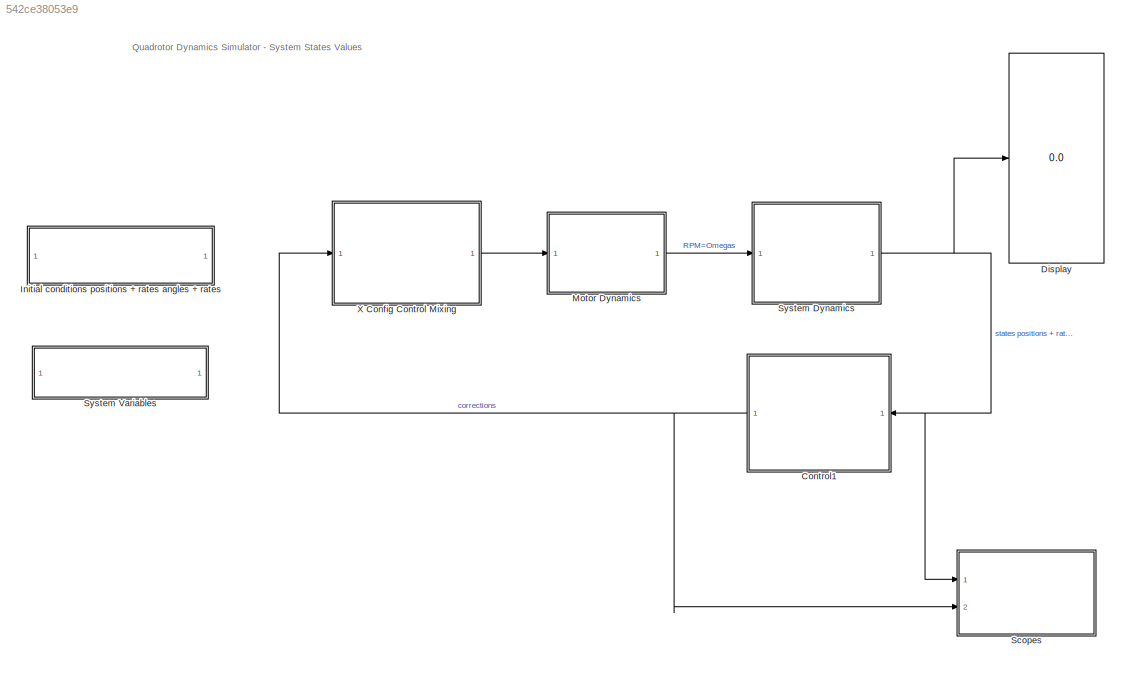
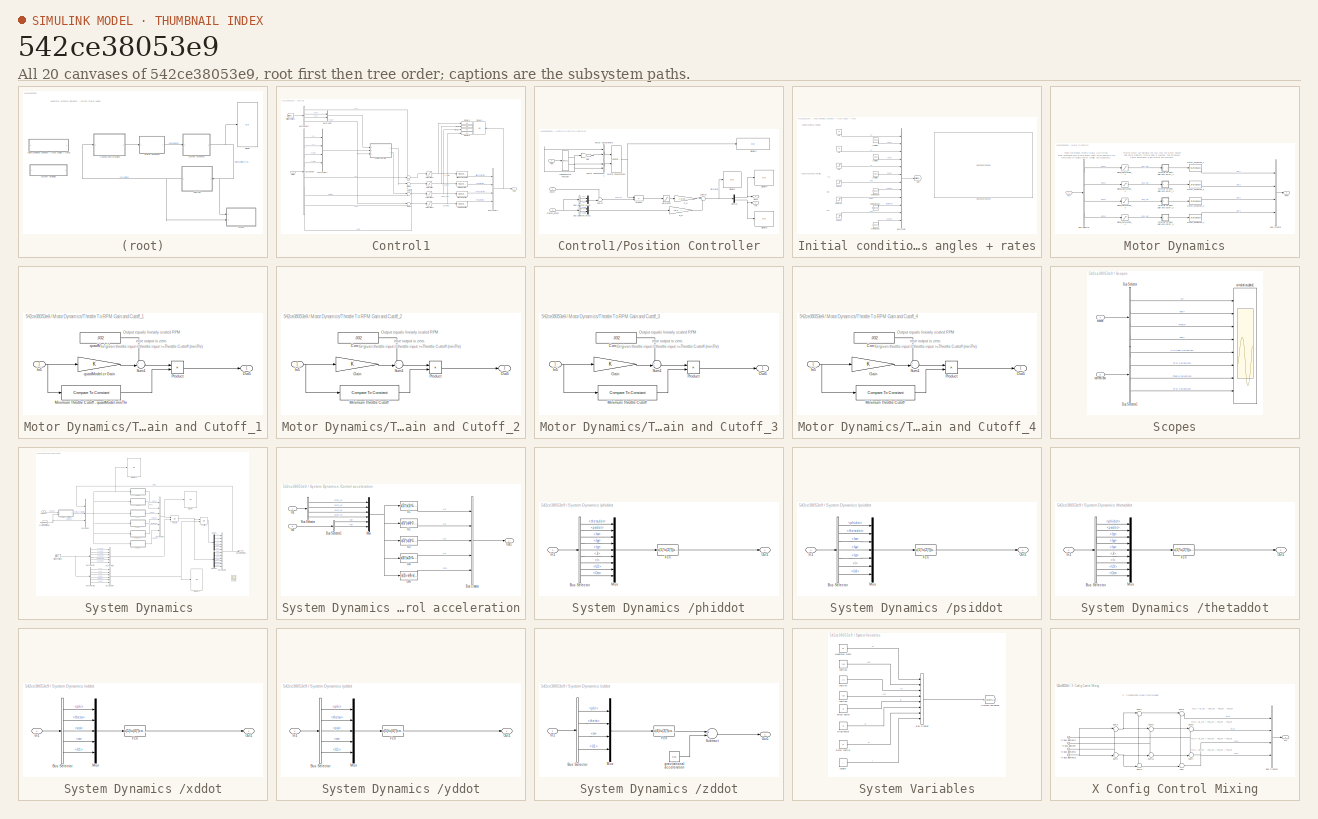
[diagram: thumbnail index - all 20 canvases of the model, root first then tree order]
MODEL slx_542ce38053e9
KIND model
CONFIG AbsTol = auto
CONFIG EnableMultiTasking = on
CONFIG FixedStep = 1
CONFIG MaxStep = auto
CONFIG MinStep = auto
CONFIG RelTol = 1e-3
CONFIG SampleTimeConstraint = Unconstrained
CONFIG Solver = ode45
CONFIG SolverName = ode45
CONFIG StartTime = 0.0
CONFIG StopTime = 60
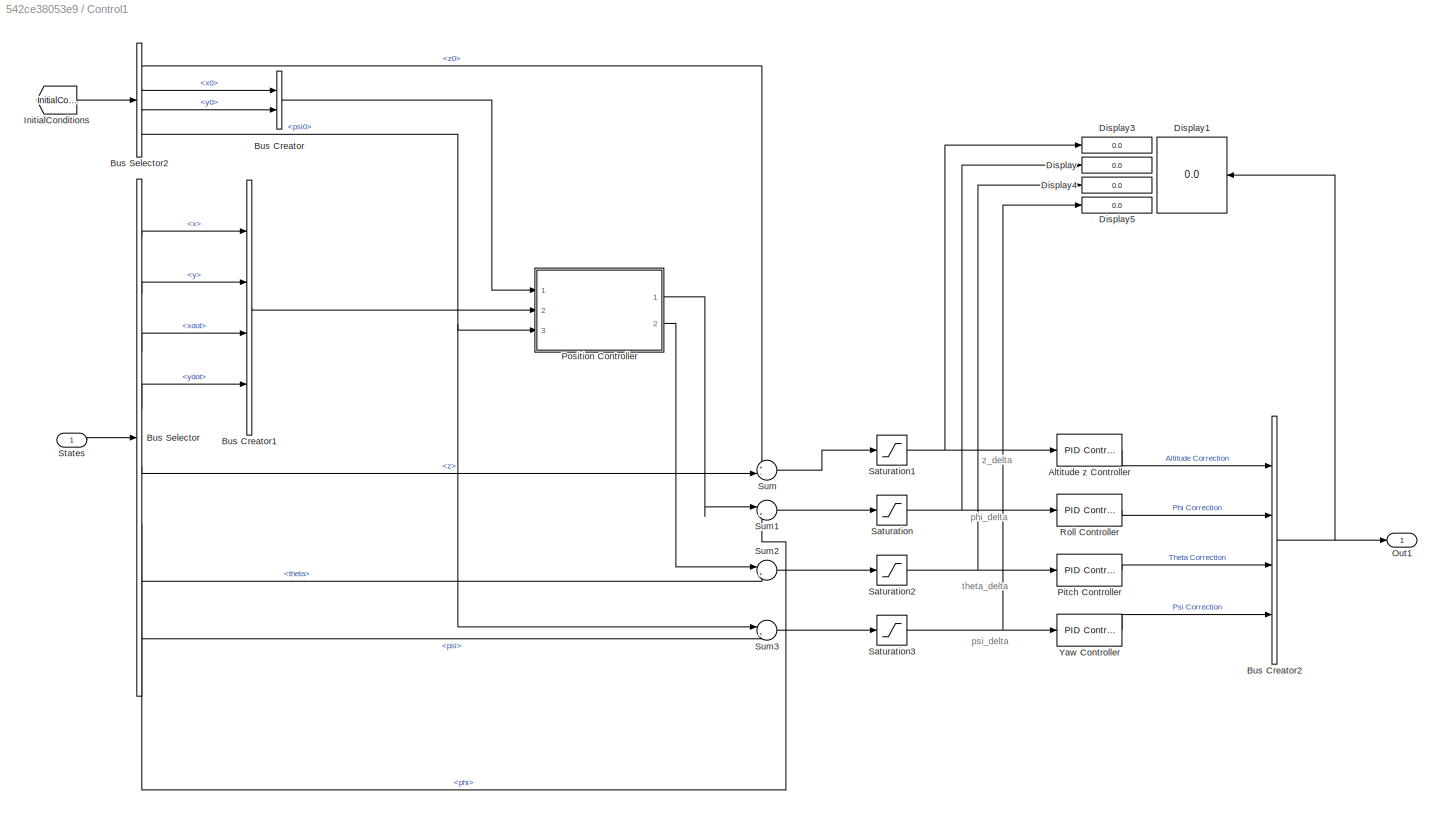
BLOCK [SubSystem] Control1
  Ports = [1, 1]
  RequestExecContextInheritance = off
BLOCK [Reference] Control1/Altitude z Controller  REF=simulink/Continuous/PID Controller
  Ports = [1, 1]
  SourceBlock = simulink/Continuous/PID Controller
  SourceProductBaseCode = SL
  SourceProductName = Simulink
  SourceType = PID 1dof
BLOCK [BusCreator] Control1/Bus Creator
  DisplayOption = bar
  InheritFromInputs = on
  Inputs = 2
  Ports = [2, 1]
BLOCK [BusCreator] Control1/Bus Creator1
  DisplayOption = bar
  InheritFromInputs = on
  Inputs = 4
  Ports = [4, 1]
BLOCK [BusCreator] Control1/Bus Creator2
  DisplayOption = bar
  InheritFromInputs = on
  Inputs = 4
  Ports = [4, 1]
BLOCK [BusSelector] Control1/Bus Selector
  OutputAsBus = off
  OutputSignals = x,y,xdot,ydot,z,phi,theta,psi
  Ports = [1, 8]
BLOCK [BusSelector] Control1/Bus Selector2
  OutputAsBus = off
  OutputSignals = z0,x0,y0,psi0
  Ports = [1, 4]
BLOCK [Display] Control1/Display
  Decimation = 1
  Ports = [1]
BLOCK [Display] Control1/Display1
  Decimation = 1
  Ports = [1]
BLOCK [Display] Control1/Display3
  Decimation = 1
  Ports = [1]
BLOCK [Display] Control1/Display4
  Decimation = 1
  Ports = [1]
BLOCK [Display] Control1/Display5
  Decimation = 1
  Ports = [1]
BLOCK [From] Control1/InitialConditions
  GotoTag = InitialConditions
  TagVisibility = global
BLOCK [Outport] Control1/Out1
  IconDisplay = Port number
BLOCK [Reference] Control1/Pitch Controller  REF=simulink/Continuous/PID Controller
  Ports = [1, 1]
  SourceBlock = simulink/Continuous/PID Controller
  SourceProductBaseCode = SL
  SourceProductName = Simulink
  SourceType = PID 1dof
BLOCK [SubSystem] Control1/Position Controller
  Ports = [3, 2]
  RequestExecContextInheritance = off
BLOCK [BusSelector] Control1/Position Controller/Bus Selector1
  OutputAsBus = off
  OutputSignals = x,y
  Ports = [1, 2]
BLOCK [BusSelector] Control1/Position Controller/Bus Selector2
  OutputAsBus = off
  OutputSignals = xdot,ydot
  Ports = [1, 2]
BLOCK [Gain] Control1/Position Controller/D_xy
  Gain = [0.1, -0.1]
  OutDataTypeStr = single
  ParamDataTypeStr = single
BLOCK [Demux] Control1/Position Controller/Demux
  DisplayOption = bar
  Outputs = 2
  Ports = [1, 2]
BLOCK [Display] Control1/Position Controller/Display1
  Decimation = 1
  Ports = [1]
BLOCK [Display] Control1/Position Controller/Display2
  Decimation = 1
  Ports = [1]
BLOCK [Display] Control1/Position Controller/Display3
  Decimation = 1
  Ports = [1]
BLOCK [Display] Control1/Position Controller/Display4
  Decimation = 1
  Ports = [1]
BLOCK [Gain] Control1/Position Controller/Gain
  Gain = -1
  OutDataTypeStr = Inherit: Inherit via internal rule
  ParamDataTypeStr = Inherit: Inherit via internal rule
  SaturateOnIntegerOverflow = off
BLOCK [Concatenate] Control1/Position Controller/Matrix Concatenate
  ConcatenateDimension = 2
  Mode = Multidimensional array
  Ports = [2, 1]
BLOCK [Mux] Control1/Position Controller/Mux
  DisplayOption = bar
  Inputs = 2
  Ports = [2, 1]
BLOCK [Mux] Control1/Position Controller/Mux1
  DisplayOption = bar
  Inputs = 2
  Ports = [2, 1]
BLOCK [Gain] Control1/Position Controller/P_xy
  Gain = [-0.24,0.24]
  OutDataTypeStr = single
  ParamDataTypeStr = single
BLOCK [Product] Control1/Position Controller/Product
  InputSameDT = off
  Multiplication = Matrix(*)
  OutDataTypeStr = single
  Ports = [2, 1]
  SaturateOnIntegerOverflow = off
BLOCK [Saturate] Control1/Position Controller/Saturation
  InputPortMap = u0
  LowerLimit = -3
  OutDataTypeStr = single
  Ports = [1, 1]
  UpperLimit = 3
BLOCK [Sum] Control1/Position Controller/Sum17
  AccumDataTypeStr = single
  IconShape = round
  InputSameDT = off
  Inputs = +-|
  OutDataTypeStr = Inherit: Inherit via internal rule
  Ports = [2, 1]
  SaturateOnIntegerOverflow = off
BLOCK [Sum] Control1/Position Controller/Sum18
  AccumDataTypeStr = single
  IconShape = round
  InputSameDT = off
  Inputs = |++
  OutDataTypeStr = single
  Ports = [2, 1]
BLOCK [Trigonometry] Control1/Position Controller/Trigonometric Function
  Operator = sincos
  Ports = [1, 2]
BLOCK [Concatenate] Control1/Position Controller/Vector Concatenate
  Ports = [2, 1]
BLOCK [Concatenate] Control1/Position Controller/Vector Concatenate1
  Ports = [2, 1]
BLOCK [Outport] Control1/Position Controller/pitch
  IconDisplay = Port number
  Port = 2
BLOCK [Inport] Control1/Position Controller/posXY
  IconDisplay = Port number
BLOCK [Outport] Control1/Position Controller/roll
  IconDisplay = Port number
BLOCK [Inport] Control1/Position Controller/states_estim
  IconDisplay = Port number
  Port = 2
BLOCK [Inport] Control1/Position Controller/yaw
  IconDisplay = Port number
  Port = 3
BLOCK [Reference] Control1/Roll Controller  REF=simulink/Continuous/PID Controller
  Ports = [1, 1]
  SourceBlock = simulink/Continuous/PID Controller
  SourceProductBaseCode = SL
  SourceProductName = Simulink
  SourceType = PID 1dof
BLOCK [Saturate] Control1/Saturation
  InputPortMap = u0
  Ports = [1, 1]
BLOCK [Saturate] Control1/Saturation1
  InputPortMap = u0
  LowerLimit = -0.8
  Ports = [1, 1]
  UpperLimit = .8
BLOCK [Saturate] Control1/Saturation2
  InputPortMap = u0
  Ports = [1, 1]
BLOCK [Saturate] Control1/Saturation3
  InputPortMap = u0
  Ports = [1, 1]
BLOCK [Inport] Control1/States
  IconDisplay = Port number
BLOCK [Sum] Control1/Sum
  IconShape = round
  InputSameDT = off
  Inputs = +-|
  OutDataTypeStr = Inherit: Inherit via internal rule
  Ports = [2, 1]
  SaturateOnIntegerOverflow = off
BLOCK [Sum] Control1/Sum1
  IconShape = round
  InputSameDT = off
  Inputs = |+-
  OutDataTypeStr = Inherit: Inherit via internal rule
  Ports = [2, 1]
  SaturateOnIntegerOverflow = off
BLOCK [Sum] Control1/Sum2
  IconShape = round
  InputSameDT = off
  Inputs = |+-
  OutDataTypeStr = Inherit: Inherit via internal rule
  Ports = [2, 1]
  SaturateOnIntegerOverflow = off
BLOCK [Sum] Control1/Sum3
  IconShape = round
  InputSameDT = off
  Inputs = |+-
  OutDataTypeStr = Inherit: Inherit via internal rule
  Ports = [2, 1]
  SaturateOnIntegerOverflow = off
BLOCK [Reference] Control1/Yaw Controller  REF=simulink/Continuous/PID Controller
  Ports = [1, 1]
  SourceBlock = simulink/Continuous/PID Controller
  SourceProductBaseCode = SL
  SourceProductName = Simulink
  SourceType = PID 1dof
BLOCK [Display] Display
  Decimation = 1
  Ports = [1]
BLOCK [SubSystem] Initial conditions positions + rates angles + rates
  Ports = []
  RequestExecContextInheritance = off
BLOCK [BusCreator] Initial conditions positions + rates angles + rates/Bus Creator
  DisplayOption = bar
  InheritFromInputs = on
  Inputs = 12
  Ports = [12, 1]
BLOCK [DashboardScope] Initial conditions positions + rates angles + rates/Dashboard Scope
  WebBlockId = 1369
BLOCK [Goto] Initial conditions positions + rates angles + rates/Goto
  GotoTag = InitialConditions
  TagVisibility = global
BLOCK [Step] Initial conditions positions + rates angles + rates/phi [rad]
  After = -10*pi/180
  SampleTime = 0
  Time = 4
BLOCK [Constant] Initial conditions positions + rates angles + rates/phidot [rad//s]
  Value = phi0dot
BLOCK [Step] Initial conditions positions + rates angles + rates/psi [rad]
  After = 45*pi/180
  SampleTime = 0
  Time = 7
BLOCK [Constant] Initial conditions positions + rates angles + rates/psidot [rad//s]
  Value = psi0dot
BLOCK [Step] Initial conditions positions + rates angles + rates/theta [rad]
  After = 10*pi/180
  SampleTime = 0
BLOCK [Constant] Initial conditions positions + rates angles + rates/thetadot [rad//s]
  Value = theta0dot
BLOCK [Constant] Initial conditions positions + rates angles + rates/x [m]
  Value = x0
BLOCK [Constant] Initial conditions positions + rates angles + rates/xdot [m//s]
  Value = x0dot
BLOCK [Constant] Initial conditions positions + rates angles + rates/y [m]
  Value = y0
BLOCK [Constant] Initial conditions positions + rates angles + rates/ydot [m//s]
  Value = y0dot
BLOCK [Step] Initial conditions positions + rates angles + rates/z [m]
  After = 10*0.3048
  Before = 10*0.3048
  SampleTime = 0
  Time = 0
BLOCK [Constant] Initial conditions positions + rates angles + rates/zdot [m//s]
  Value = z0dot
BLOCK [SubSystem] Motor Dynamics
  Ports = [1, 1]
  RequestExecContextInheritance = off
BLOCK [BusCreator] Motor Dynamics/Bus Creator
  DisplayOption = bar
  InheritFromInputs = on
  Inputs = 4
  Ports = [4, 1]
BLOCK [BusSelector] Motor Dynamics/Bus Selector
  OutputAsBus = off
  OutputSignals = mc1,mc2,mc3,mc4
  Ports = [1, 4]
BLOCK [StateSpace] Motor Dynamics/Motor_Dynamics_1
  A = -1/.00002
  C = 1/.00002
  D = 0
  InitialCondition = 4000*.00002
  Ports = [1, 1]
BLOCK [StateSpace] Motor Dynamics/Motor_Dynamics_2
  A = -1/.00002
  C = 1/.00002
  D = 0
  InitialCondition = 4000*.00002
  Ports = [1, 1]
BLOCK [StateSpace] Motor Dynamics/Motor_Dynamics_3
  A = -1/.00002
  C = 1/.00002
  D = 0
  InitialCondition = 4000*.00002
  Ports = [1, 1]
BLOCK [StateSpace] Motor Dynamics/Motor_Dynamics_4
  A = -1/.00002
  C = 1/.00002
  D = 0
  InitialCondition = 4000*.00002
  Ports = [1, 1]
BLOCK [Outport] Motor Dynamics/RPM
  IconDisplay = Port number
BLOCK [Saturate] Motor Dynamics/Signal_Saturation_1
  InputPortMap = u0
  LowerLimit = 0
  Ports = [1, 1]
  UpperLimit = 100
BLOCK [Saturate] Motor Dynamics/Signal_Saturation_2
  InputPortMap = u0
  LowerLimit = 0
  Ports = [1, 1]
  UpperLimit = 100
BLOCK [Saturate] Motor Dynamics/Signal_Saturation_3
  InputPortMap = u0
  LowerLimit = 0
  Ports = [1, 1]
  UpperLimit = 100
BLOCK [Saturate] Motor Dynamics/Signal_Saturation_4
  InputPortMap = u0
  LowerLimit = 0
  Ports = [1, 1]
  UpperLimit = 100
BLOCK [SubSystem] Motor Dynamics/Throttle To RPM Gain and Cutoff_1
  Ports = [1, 1]
  RequestExecContextInheritance = off
  ShowPortLabels = none
BLOCK [Inport] Motor Dynamics/Throttle To RPM Gain and Cutoff_1/In5
  IconDisplay = Port number
BLOCK [Reference] Motor Dynamics/Throttle To RPM Gain and Cutoff_1/Minimum Throttle Cutoff - quadModel.minThr  REF=simulink/Logic and Bit
Operations/Compare
To Constant
  Ports = [1, 1]
  SourceBlock = simulink/Logic and Bit\nOperations/Compare\nTo Constant
  SourceProductBaseCode = SL
  SourceProductName = Simulink
  SourceType = Compare To Constant
BLOCK [Outport] Motor Dynamics/Throttle To RPM Gain and Cutoff_1/Out5
  IconDisplay = Port number
BLOCK [Product] Motor Dynamics/Throttle To RPM Gain and Cutoff_1/Product
  InputSameDT = off
  OutDataTypeStr = Inherit: Inherit via internal rule
  Ports = [2, 1]
  RndMeth = Floor
  SaturateOnIntegerOverflow = off
BLOCK [Sum] Motor Dynamics/Throttle To RPM Gain and Cutoff_1/Sum1
  IconShape = round
  InputSameDT = off
  Inputs = ++|
  OutDataTypeStr = Inherit: Inherit via internal rule
  Ports = [2, 1]
  SaturateOnIntegerOverflow = off
BLOCK [Constant] Motor Dynamics/Throttle To RPM Gain and Cutoff_1/quadModel.b
  Value = .032
BLOCK [Gain] Motor Dynamics/Throttle To RPM Gain and Cutoff_1/quadModel.cr Gain
  OutDataTypeStr = Inherit: Inherit via internal rule
  ParamDataTypeStr = Inherit: Inherit via internal rule
  SaturateOnIntegerOverflow = off
BLOCK [SubSystem] Motor Dynamics/Throttle To RPM Gain and Cutoff_2
  Ports = [1, 1]
  RequestExecContextInheritance = off
  ShowPortLabels = none
BLOCK [Constant] Motor Dynamics/Throttle To RPM Gain and Cutoff_2/Constant
  Value = .032
BLOCK [Gain] Motor Dynamics/Throttle To RPM Gain and Cutoff_2/Gain
  OutDataTypeStr = Inherit: Inherit via internal rule
  ParamDataTypeStr = Inherit: Inherit via internal rule
  SaturateOnIntegerOverflow = off
BLOCK [Inport] Motor Dynamics/Throttle To RPM Gain and Cutoff_2/In5
  IconDisplay = Port number
BLOCK [Reference] Motor Dynamics/Throttle To RPM Gain and Cutoff_2/Minimum Throttle Cutoff  REF=simulink/Logic and Bit
Operations/Compare
To Constant
  Ports = [1, 1]
  SourceBlock = simulink/Logic and Bit\nOperations/Compare\nTo Constant
  SourceProductBaseCode = SL
  SourceProductName = Simulink
  SourceType = Compare To Constant
BLOCK [Outport] Motor Dynamics/Throttle To RPM Gain and Cutoff_2/Out5
  IconDisplay = Port number
BLOCK [Product] Motor Dynamics/Throttle To RPM Gain and Cutoff_2/Product
  InputSameDT = off
  OutDataTypeStr = Inherit: Inherit via internal rule
  Ports = [2, 1]
  RndMeth = Floor
  SaturateOnIntegerOverflow = off
BLOCK [Sum] Motor Dynamics/Throttle To RPM Gain and Cutoff_2/Sum1
  IconShape = round
  InputSameDT = off
  Inputs = ++|
  OutDataTypeStr = Inherit: Inherit via internal rule
  Ports = [2, 1]
  SaturateOnIntegerOverflow = off
BLOCK [SubSystem] Motor Dynamics/Throttle To RPM Gain and Cutoff_3
  Ports = [1, 1]
  RequestExecContextInheritance = off
  ShowPortLabels = none
BLOCK [Constant] Motor Dynamics/Throttle To RPM Gain and Cutoff_3/Constant
  Value = .032
BLOCK [Gain] Motor Dynamics/Throttle To RPM Gain and Cutoff_3/Gain
  OutDataTypeStr = Inherit: Inherit via internal rule
  ParamDataTypeStr = Inherit: Inherit via internal rule
  SaturateOnIntegerOverflow = off
BLOCK [Inport] Motor Dynamics/Throttle To RPM Gain and Cutoff_3/In5
  IconDisplay = Port number
BLOCK [Reference] Motor Dynamics/Throttle To RPM Gain and Cutoff_3/Minimum Throttle Cutoff  REF=simulink/Logic and Bit
Operations/Compare
To Constant
  Ports = [1, 1]
  SourceBlock = simulink/Logic and Bit\nOperations/Compare\nTo Constant
  SourceProductBaseCode = SL
  SourceProductName = Simulink
  SourceType = Compare To Constant
BLOCK [Outport] Motor Dynamics/Throttle To RPM Gain and Cutoff_3/Out5
  IconDisplay = Port number
BLOCK [Product] Motor Dynamics/Throttle To RPM Gain and Cutoff_3/Product
  InputSameDT = off
  OutDataTypeStr = Inherit: Inherit via internal rule
  Ports = [2, 1]
  RndMeth = Floor
  SaturateOnIntegerOverflow = off
BLOCK [Sum] Motor Dynamics/Throttle To RPM Gain and Cutoff_3/Sum1
  IconShape = round
  InputSameDT = off
  Inputs = ++|
  OutDataTypeStr = Inherit: Inherit via internal rule
  Ports = [2, 1]
  SaturateOnIntegerOverflow = off
BLOCK [SubSystem] Motor Dynamics/Throttle To RPM Gain and Cutoff_4
  Ports = [1, 1]
  RequestExecContextInheritance = off
  ShowPortLabels = none
BLOCK [Constant] Motor Dynamics/Throttle To RPM Gain and Cutoff_4/Constant
  Value = .032
BLOCK [Gain] Motor Dynamics/Throttle To RPM Gain and Cutoff_4/Gain
  OutDataTypeStr = Inherit: Inherit via internal rule
  ParamDataTypeStr = Inherit: Inherit via internal rule
  SaturateOnIntegerOverflow = off
BLOCK [Inport] Motor Dynamics/Throttle To RPM Gain and Cutoff_4/In5
  IconDisplay = Port number
BLOCK [Reference] Motor Dynamics/Throttle To RPM Gain and Cutoff_4/Minimum Throttle Cutoff  REF=simulink/Logic and Bit
Operations/Compare
To Constant
  Ports = [1, 1]
  SourceBlock = simulink/Logic and Bit\nOperations/Compare\nTo Constant
  SourceProductBaseCode = SL
  SourceProductName = Simulink
  SourceType = Compare To Constant
BLOCK [Outport] Motor Dynamics/Throttle To RPM Gain and Cutoff_4/Out5
  IconDisplay = Port number
BLOCK [Product] Motor Dynamics/Throttle To RPM Gain and Cutoff_4/Product
  InputSameDT = off
  OutDataTypeStr = Inherit: Inherit via internal rule
  Ports = [2, 1]
  RndMeth = Floor
  SaturateOnIntegerOverflow = off
BLOCK [Sum] Motor Dynamics/Throttle To RPM Gain and Cutoff_4/Sum1
  IconShape = round
  InputSameDT = off
  Inputs = ++|
  OutDataTypeStr = Inherit: Inherit via internal rule
  Ports = [2, 1]
  SaturateOnIntegerOverflow = off
BLOCK [Inport] Motor Dynamics/mc
  IconDisplay = Port number
BLOCK [SubSystem] Scopes
  Ports = [2]
  RequestExecContextInheritance = off
BLOCK [BusSelector] Scopes/Bus Selector
  OutputAsBus = off
  OutputSignals = z,phi,theta,psi
  Ports = [1, 4]
BLOCK [BusSelector] Scopes/Bus Selector1
  OutputAsBus = off
  OutputSignals = Altitude Correction,Phi Correction,Theta Correction,Psi Correction
  Ports = [1, 4]
BLOCK [Inport] Scopes/corrections
  IconDisplay = Port number
  Port = 2
BLOCK [Scope] Scopes/simulation_data1
  Floating = off
  NumInputPorts = 8
  Ports = [8]
  ScopeSpecificationString = Simulink.scopes.TimeScopeBlockCfg('CurrentConfiguration', extmgr.ConfigurationSet(extmgr.Configuration('Core','General UI',true,'DisplayFullSourceName',true),extmgr.Configuration('Core','Source UI',true),extmgr.Configuration('Sources','WiredSimulink',true,'DataLoggingSaveFormat','StructureWithTime','DataLoggingMaxPoints','7','DataLoggingDecimation','1','DataLoggingDecimateData',true),extmgr.Config...<+6596ch>
BLOCK [Inport] Scopes/states
  IconDisplay = Port number
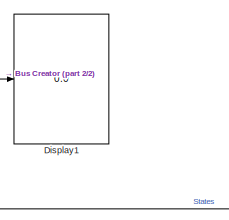
[diagram: System Dynamics  - part 1/2, top center region]
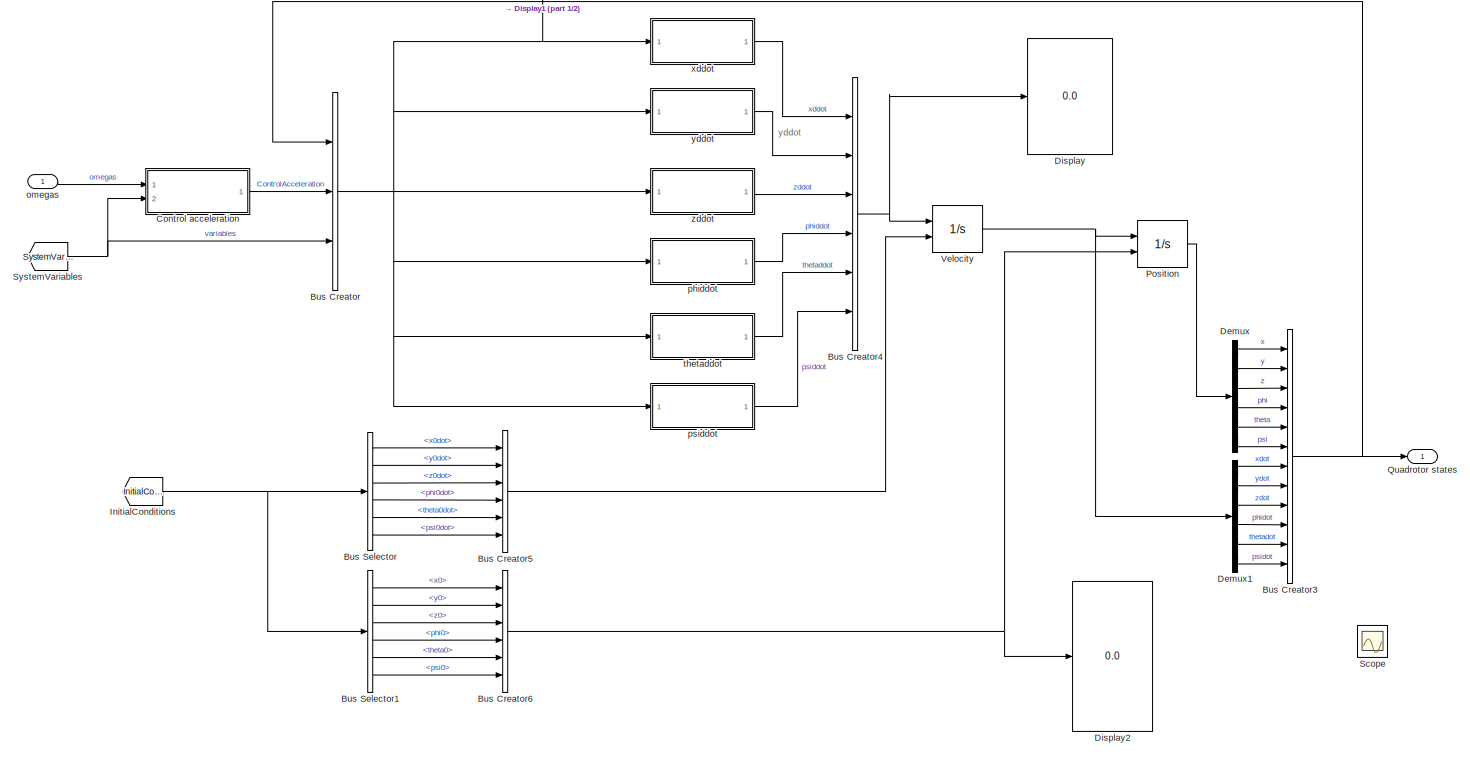
[diagram: System Dynamics  - part 2/2, most of the canvas]
BLOCK [SubSystem] System Dynamics 
  Ports = [1, 1]
  RequestExecContextInheritance = off
BLOCK [BusCreator] System Dynamics /Bus Creator
  DisplayOption = bar
  InheritFromInputs = on
  Inputs = 3
  Ports = [3, 1]
BLOCK [BusCreator] System Dynamics /Bus Creator3
  DisplayOption = bar
  InheritFromInputs = on
  Inputs = 12
  Ports = [12, 1]
BLOCK [BusCreator] System Dynamics /Bus Creator4
  DisplayOption = bar
  InheritFromInputs = on
  Inputs = 6
  Ports = [6, 1]
BLOCK [BusCreator] System Dynamics /Bus Creator5
  DisplayOption = bar
  InheritFromInputs = on
  Inputs = 6
  Ports = [6, 1]
BLOCK [BusCreator] System Dynamics /Bus Creator6
  DisplayOption = bar
  InheritFromInputs = on
  Inputs = 6
  Ports = [6, 1]
BLOCK [BusSelector] System Dynamics /Bus Selector
  OutputAsBus = off
  OutputSignals = x0dot,y0dot,z0dot,phi0dot,theta0dot,psi0dot
  Ports = [1, 6]
BLOCK [BusSelector] System Dynamics /Bus Selector1
  OutputAsBus = off
  OutputSignals = x0,y0,z0,phi0,theta0,psi0
  Ports = [1, 6]
BLOCK [SubSystem] System Dynamics /Control acceleration
  Ports = [2, 1]
  RequestExecContextInheritance = off
BLOCK [BusCreator] System Dynamics /Control acceleration/Bus Creator
  DisplayOption = bar
  InheritFromInputs = on
  Inputs = 5
  Ports = [5, 1]
BLOCK [BusSelector] System Dynamics /Control acceleration/Bus Selector
  OutputAsBus = off
  OutputSignals = Om_1,Om_2,Om_3,Om_4
  Ports = [1, 4]
BLOCK [BusSelector] System Dynamics /Control acceleration/Bus Selector1
  OutputAsBus = off
  OutputSignals = b,d
  Ports = [1, 2]
BLOCK [Inport] System Dynamics /Control acceleration/In1
  IconDisplay = Port number
BLOCK [Inport] System Dynamics /Control acceleration/In2
  IconDisplay = Port number
  Port = 2
BLOCK [Mux] System Dynamics /Control acceleration/Mux
  DisplayOption = bar
  Inputs = 6
  Ports = [6, 1]
BLOCK [Fcn] System Dynamics /Control acceleration/Om
  Expr = (u(2)+u(4)-u(1)-u(3))
BLOCK [Outport] System Dynamics /Control acceleration/Out1
  IconDisplay = Port number
BLOCK [Fcn] System Dynamics /Control acceleration/U1
  Expr = u(5)*(u(1)^2+u(2)^2+u(3)^2+u(4)^2)
BLOCK [Fcn] System Dynamics /Control acceleration/U2
  Expr = u(5)*(u(4)^2-u(2)^2)
BLOCK [Fcn] System Dynamics /Control acceleration/U3
  Expr = u(5)*(u(3)^2-u(1)^2)
BLOCK [Fcn] System Dynamics /Control acceleration/U4
  Expr = u(6)*(u(2)^2+u(4)^2-u(1)^2-u(3)^2)
BLOCK [Demux] System Dynamics /Demux
  DisplayOption = bar
  Outputs = 6
  Ports = [1, 6]
BLOCK [Demux] System Dynamics /Demux1
  DisplayOption = bar
  Outputs = 6
  Ports = [1, 6]
BLOCK [Display] System Dynamics /Display
  Decimation = 1
  Ports = [1]
BLOCK [Display] System Dynamics /Display1
  Decimation = 1
  Ports = [1]
BLOCK [Display] System Dynamics /Display2
  Decimation = 1
  Ports = [1]
BLOCK [From] System Dynamics /InitialConditions
  GotoTag = InitialConditions
  TagVisibility = global
BLOCK [Integrator] System Dynamics /Position
  InitialConditionSource = external
  Ports = [2, 1]
BLOCK [Outport] System Dynamics /Quadrotor states
  IconDisplay = Port number
BLOCK [Scope] System Dynamics /Scope
  Floating = off
  NumInputPorts = 1
  Ports = [1]
  ScopeSpecificationString = Simulink.scopes.TimeScopeBlockCfg('CurrentConfiguration', extmgr.ConfigurationSet(extmgr.Configuration('Core','General UI',true),extmgr.Configuration('Core','Source UI',true),extmgr.Configuration('Sources','WiredSimulink',true,'DataLoggingVariableName','ScopeData1'),extmgr.Configuration('Visuals','Time Domain',true,'SerializedDisplays',{struct('MinYLimReal','-1.00000','MaxYLimReal','1.00000','YLab...<+1365ch>
BLOCK [From] System Dynamics /SystemVariables
  GotoTag = SystemVariables
  TagVisibility = global
BLOCK [Integrator] System Dynamics /Velocity
  InitialConditionSource = external
  Ports = [2, 1]
BLOCK [Inport] System Dynamics /omegas
  IconDisplay = Port number
BLOCK [SubSystem] System Dynamics /phiddot
  Ports = [1, 1]
  RequestExecContextInheritance = off
BLOCK [BusSelector] System Dynamics /phiddot/Bus Selector
  OutputAsBus = off
  OutputSignals = States.thetadot,States.psidot,variables.Ixx,variables.Iyy,variables.Izz,variables.Jr,variables.l,ControlAcceleration.U2,ControlAcceleration.Om
  Ports = [1, 9]
BLOCK [Fcn] System Dynamics /phiddot/Fcn
  Expr = u(1)*u(2)*((u(4)-u(5))/u(3))-(u(6)*u(1)*u(9)/u(3))+(u(7)*u(8)/u(3))
BLOCK [Inport] System Dynamics /phiddot/In1
  IconDisplay = Port number
BLOCK [Mux] System Dynamics /phiddot/Mux
  DisplayOption = bar
  Inputs = 9
  Ports = [9, 1]
BLOCK [Outport] System Dynamics /phiddot/Out1
  IconDisplay = Port number
BLOCK [SubSystem] System Dynamics /psiddot
  Ports = [1, 1]
  RequestExecContextInheritance = off
BLOCK [BusSelector] System Dynamics /psiddot/Bus Selector
  OutputAsBus = off
  OutputSignals = States.phidot,States.thetadot,variables.Ixx,variables.Iyy,variables.Izz,variables.l,ControlAcceleration.U4
  Ports = [1, 7]
BLOCK [Fcn] System Dynamics /psiddot/Fcn
  Expr = u(1)*u(2)*((u(3)-u(4))/u(5))+(u(6)*u(7)/u(5))
BLOCK [Inport] System Dynamics /psiddot/In1
  IconDisplay = Port number
BLOCK [Mux] System Dynamics /psiddot/Mux
  DisplayOption = bar
  Inputs = 7
  Ports = [7, 1]
BLOCK [Outport] System Dynamics /psiddot/Out1
  IconDisplay = Port number
BLOCK [SubSystem] System Dynamics /thetaddot
  Ports = [1, 1]
  RequestExecContextInheritance = off
BLOCK [BusSelector] System Dynamics /thetaddot/Bus Selector
  OutputAsBus = off
  OutputSignals = States.phidot,States.psidot,variables.Iyy,variables.Izz,variables.Ixx,variables.Jr,variables.l,ControlAcceleration.U3,ControlAcceleration.Om
  Ports = [1, 9]
BLOCK [Fcn] System Dynamics /thetaddot/Fcn
  Expr = u(1)*u(2)*((u(4)-u(5))/u(3))+(u(6)*u(1)*u(9)/u(3))+(u(7)*u(8)/u(3))
BLOCK [Inport] System Dynamics /thetaddot/In1
  IconDisplay = Port number
BLOCK [Mux] System Dynamics /thetaddot/Mux
  DisplayOption = bar
  Inputs = 9
  Ports = [9, 1]
BLOCK [Outport] System Dynamics /thetaddot/Out1
  IconDisplay = Port number
BLOCK [SubSystem] System Dynamics /xddot
  Ports = [1, 1]
  RequestExecContextInheritance = off
BLOCK [BusSelector] System Dynamics /xddot/Bus Selector
  OutputAsBus = off
  OutputSignals = States.phi,States.theta,States.psi,variables.m,ControlAcceleration.U1
  Ports = [1, 5]
BLOCK [Fcn] System Dynamics /xddot/Fcn
  Expr = u(5)/u(4)*(cos(u(1))*sin(u(2))*cos(u(3))+sin(u(1))*sin(u(3)))
BLOCK [Inport] System Dynamics /xddot/In1
  IconDisplay = Port number
BLOCK [Mux] System Dynamics /xddot/Mux
  DisplayOption = bar
  Inputs = 5
  Ports = [5, 1]
BLOCK [Outport] System Dynamics /xddot/Out1
  IconDisplay = Port number
BLOCK [SubSystem] System Dynamics /yddot
  Ports = [1, 1]
  RequestExecContextInheritance = off
BLOCK [BusSelector] System Dynamics /yddot/Bus Selector
  OutputAsBus = off
  OutputSignals = States.phi,States.theta,States.psi,variables.m,ControlAcceleration.U1
  Ports = [1, 5]
BLOCK [Fcn] System Dynamics /yddot/Fcn
  Expr = u(5)/u(4)*(cos(u(1))*sin(u(2))*sin(u(3))-sin(u(1))*cos(u(3)))
BLOCK [Inport] System Dynamics /yddot/In1
  IconDisplay = Port number
BLOCK [Mux] System Dynamics /yddot/Mux
  DisplayOption = bar
  Inputs = 5
  Ports = [5, 1]
BLOCK [Outport] System Dynamics /yddot/Out1
  IconDisplay = Port number
BLOCK [SubSystem] System Dynamics /zddot
  Ports = [1, 1]
  RequestExecContextInheritance = off
BLOCK [BusSelector] System Dynamics /zddot/Bus Selector
  OutputAsBus = off
  OutputSignals = States.phi,States.theta,variables.m,ControlAcceleration.U1
  Ports = [1, 4]
BLOCK [Fcn] System Dynamics /zddot/Fcn
  Expr = u(4)/u(3)*(cos(u(1))*cos(u(2)))
BLOCK [Inport] System Dynamics /zddot/In1
  IconDisplay = Port number
BLOCK [Mux] System Dynamics /zddot/Mux
  DisplayOption = bar
  Ports = [4, 1]
BLOCK [Outport] System Dynamics /zddot/Out1
  IconDisplay = Port number
BLOCK [Sum] System Dynamics /zddot/Subtract
  InputSameDT = off
  Inputs = +-
  OutDataTypeStr = Inherit: Inherit via internal rule
  Ports = [2, 1]
  SaturateOnIntegerOverflow = off
BLOCK [Constant] System Dynamics /zddot/gravitational acceleration
  Value = 9.81
BLOCK [SubSystem] System Variables
  Ports = []
  RequestExecContextInheritance = off
BLOCK [BusCreator] System Variables/Bus Creator
  DisplayOption = bar
  InheritFromInputs = on
  Inputs = 8
  Ports = [8, 1]
BLOCK [Constant] System Variables/Drag Factor
  Value = d
BLOCK [Constant] System Variables/InertiaX
  Value = Ixx
BLOCK [Constant] System Variables/InertiaY
  Value = Iyy
BLOCK [Constant] System Variables/InertiaZ
  Value = Izz
BLOCK [Constant] System Variables/Length
  Value = l
BLOCK [Constant] System Variables/Quadrotor Mass
  Value = m
BLOCK [Constant] System Variables/Rotor Inertia
  Value = Jr
BLOCK [Goto] System Variables/System variables
  GotoTag = SystemVariables
  TagVisibility = global
BLOCK [Constant] System Variables/Thrust Factor
  Value = b
BLOCK [SubSystem] X Config Control Mixing
  Ports = [1, 1]
  RequestExecContextInheritance = off
BLOCK [BusCreator] X Config Control Mixing/Bus Creator
  DisplayOption = bar
  InheritFromInputs = on
  Inputs = 4
  Ports = [4, 1]
BLOCK [Inport] X Config Control Mixing/In Bus Element
  IconDisplay = Port number
BLOCK [Inport] X Config Control Mixing/In Bus Element1
  IconDisplay = Port number
BLOCK [Inport] X Config Control Mixing/In Bus Element2
  IconDisplay = Port number
BLOCK [Inport] X Config Control Mixing/In Bus Element3
  IconDisplay = Port number
BLOCK [Sum] X Config Control Mixing/Sum
  IconShape = round
  InputSameDT = off
  Inputs = -+|
  OutDataTypeStr = Inherit: Inherit via internal rule
  Ports = [2, 1]
  SaturateOnIntegerOverflow = off
BLOCK [Sum] X Config Control Mixing/Sum1
  IconShape = round
  InputSameDT = off
  Inputs = |+-
  OutDataTypeStr = Inherit: Inherit via internal rule
  Ports = [2, 1]
  SaturateOnIntegerOverflow = off
BLOCK [Sum] X Config Control Mixing/Sum11
  IconShape = round
  InputSameDT = off
  Inputs = -+|
  OutDataTypeStr = Inherit: Inherit via internal rule
  Ports = [2, 1]
  SaturateOnIntegerOverflow = off
BLOCK [Sum] X Config Control Mixing/Sum2
  IconShape = round
  InputSameDT = off
  Inputs = |+-
  OutDataTypeStr = Inherit: Inherit via internal rule
  Ports = [2, 1]
  SaturateOnIntegerOverflow = off
BLOCK [Sum] X Config Control Mixing/Sum3
  IconShape = round
  InputSameDT = off
  Inputs = ++|
  OutDataTypeStr = Inherit: Inherit via internal rule
  Ports = [2, 1]
  SaturateOnIntegerOverflow = off
BLOCK [Sum] X Config Control Mixing/Sum4
  IconShape = round
  InputSameDT = off
  Inputs = ++|
  OutDataTypeStr = Inherit: Inherit via internal rule
  Ports = [2, 1]
  SaturateOnIntegerOverflow = off
BLOCK [Sum] X Config Control Mixing/Sum5
  IconShape = round
  InputSameDT = off
  Inputs = |+-
  OutDataTypeStr = Inherit: Inherit via internal rule
  Ports = [2, 1]
  SaturateOnIntegerOverflow = off
BLOCK [Sum] X Config Control Mixing/Sum6
  IconShape = round
  InputSameDT = off
  Inputs = |++
  OutDataTypeStr = Inherit: Inherit via internal rule
  Ports = [2, 1]
  SaturateOnIntegerOverflow = off
BLOCK [Sum] X Config Control Mixing/Sum7
  IconShape = round
  InputSameDT = off
  Inputs = ++|
  OutDataTypeStr = Inherit: Inherit via internal rule
  Ports = [2, 1]
  SaturateOnIntegerOverflow = off
BLOCK [Sum] X Config Control Mixing/Sum8
  IconShape = round
  InputSameDT = off
  Inputs = |++
  OutDataTypeStr = Inherit: Inherit via internal rule
  Ports = [2, 1]
  SaturateOnIntegerOverflow = off
BLOCK [Outport] X Config Control Mixing/mc
  IconDisplay = Port number
ANNOTATION (root): Quadrotor Dynamics Simulator - System States Values
ANNOTATION Control1: phi_delta
ANNOTATION Control1: psi_delta
ANNOTATION Control1: theta_delta
ANNOTATION Control1: z_delta
ANNOTATION Initial conditions positions + rates angles + rates: angles and angular velocities
ANNOTATION Initial conditions positions + rates angles + rates: pitch
ANNOTATION Initial conditions positions + rates angles + rates: positions and linear velocities
ANNOTATION Initial conditions positions + rates angles + rates: roll
ANNOTATION Initial conditions positions + rates angles + rates: yaw
ANNOTATION Motor Dynamics: These saturations model a SIGNAL LIMITATION. Other intentional control saturations might be introduced in the control loop to achieve better stability and consistency.
ANNOTATION Motor Dynamics: Throttle cutoff can simulate the fact that the motor doesn't spin until a minimum throttle point is reached. This introduces a jump discontinuity in low throttle performance.
ANNOTATION Motor Dynamics/Throttle To RPM Gain and Cutoff_1: Output equals linearly scaled RPM for given throttle input if throttle input >=Throttle Cuttoff (minThr) else output is zero.
ANNOTATION Motor Dynamics/Throttle To RPM Gain and Cutoff_2: Output equals linearly scaled RPM for given throttle input if throttle input >=Throttle Cuttoff (minThr) else output is zero.
ANNOTATION Motor Dynamics/Throttle To RPM Gain and Cutoff_3: Output equals linearly scaled RPM for given throttle input if throttle input >=Throttle Cuttoff (minThr) else output is zero.
ANNOTATION Motor Dynamics/Throttle To RPM Gain and Cutoff_4: Output equals linearly scaled RPM for given throttle input if throttle input >=Throttle Cuttoff (minThr) else output is zero.
ANNOTATION System Dynamics : yddot
ANNOTATION X Config Control Mixing: X - Configuration Quad Control Mixing
ANNOTATION X Config Control Mixing: mc1 = Alt_cor - The_cor - Phi_cor - Psi_cor
ANNOTATION X Config Control Mixing: mc2 = Alt_cor - The_cor + Phi_cor + Psi_cor
ANNOTATION X Config Control Mixing: mc3 = Alt_cor + The_cor + Phi_cor - Psi_cor
ANNOTATION X Config Control Mixing: mc4 = Alt_cor + The_cor - Phi_cor + Psi_cor
LINE Control1/Altitude z Controller:1 -> Control1/Bus Creator2:1
LINE Control1/Bus Creator1:1 -> Control1/Position Controller:2
NET Control1/Bus Creator2:1 -> Control1/Display1:1, Control1/Out1:1
LINE Control1/Bus Creator:1 -> Control1/Position Controller:1
LINE Control1/Bus Selector2:1 -> Control1/Sum:1
LINE Control1/Bus Selector2:2 -> Control1/Bus Creator:1
LINE Control1/Bus Selector2:3 -> Control1/Bus Creator:2
NET Control1/Bus Selector2:4 -> Control1/Position Controller:3, Control1/Sum3:1
LINE Control1/Bus Selector:1 -> Control1/Bus Creator1:1
LINE Control1/Bus Selector:2 -> Control1/Bus Creator1:2
LINE Control1/Bus Selector:3 -> Control1/Bus Creator1:3
LINE Control1/Bus Selector:4 -> Control1/Bus Creator1:4
LINE Control1/Bus Selector:5 -> Control1/Sum:2
LINE Control1/Bus Selector:6 -> Control1/Sum1:2
LINE Control1/Bus Selector:7 -> Control1/Sum2:2
LINE Control1/Bus Selector:8 -> Control1/Sum3:2
LINE Control1/InitialConditions:1 -> Control1/Bus Selector2:1
LINE Control1/Pitch Controller:1 -> Control1/Bus Creator2:3
LINE Control1/Position Controller/Bus Selector1:1 -> Control1/Position Controller/Mux:1
LINE Control1/Position Controller/Bus Selector1:2 -> Control1/Position Controller/Mux:2
LINE Control1/Position Controller/Bus Selector2:1 -> Control1/Position Controller/Mux1:1
LINE Control1/Position Controller/Bus Selector2:2 -> Control1/Position Controller/Mux1:2
LINE Control1/Position Controller/D_xy:1 -> Control1/Position Controller/Sum18:2
NET Control1/Position Controller/Demux:1 -> Control1/Position Controller/Display4:1, Control1/Position Controller/pitch:1
NET Control1/Position Controller/Demux:2 -> Control1/Position Controller/Display2:1, Control1/Position Controller/roll:1
LINE Control1/Position Controller/Gain:1 -> Control1/Position Controller/Vector Concatenate:2
NET Control1/Position Controller/Matrix Concatenate:1 -> Control1/Position Controller/Display3:1, Control1/Position Controller/Product:1
LINE Control1/Position Controller/Mux1:1 -> Control1/Position Controller/D_xy:1
LINE Control1/Position Controller/Mux:1 -> Control1/Position Controller/Sum17:2
LINE Control1/Position Controller/P_xy:1 -> Control1/Position Controller/Sum18:1
LINE Control1/Position Controller/Product:1 -> Control1/Position Controller/Saturation:1
LINE Control1/Position Controller/Saturation:1 -> Control1/Position Controller/P_xy:1
LINE Control1/Position Controller/Sum17:1 -> Control1/Position Controller/Product:2
NET Control1/Position Controller/Sum18:1 -> Control1/Position Controller/Demux:1, Control1/Position Controller/Display1:1
NET Control1/Position Controller/Trigonometric Function:1 -> Control1/Position Controller/Gain:1, Control1/Position Controller/Vector Concatenate1:1
NET Control1/Position Controller/Trigonometric Function:2 -> Control1/Position Controller/Vector Concatenate1:2, Control1/Position Controller/Vector Concatenate:1
LINE Control1/Position Controller/Vector Concatenate1:1 -> Control1/Position Controller/Matrix Concatenate:2
LINE Control1/Position Controller/Vector Concatenate:1 -> Control1/Position Controller/Matrix Concatenate:1
LINE Control1/Position Controller/posXY:1 -> Control1/Position Controller/Sum17:1
NET Control1/Position Controller/states_estim:1 -> Control1/Position Controller/Bus Selector1:1, Control1/Position Controller/Bus Selector2:1
LINE Control1/Position Controller/yaw:1 -> Control1/Position Controller/Trigonometric Function:1
LINE Control1/Position Controller:1 -> Control1/Sum1:1
LINE Control1/Position Controller:2 -> Control1/Sum2:1
LINE Control1/Roll Controller:1 -> Control1/Bus Creator2:2
NET Control1/Saturation1:1 -> Control1/Altitude z Controller:1, Control1/Display3:1
NET Control1/Saturation2:1 -> Control1/Display4:1, Control1/Pitch Controller:1
NET Control1/Saturation3:1 -> Control1/Display5:1, Control1/Yaw Controller:1
NET Control1/Saturation:1 -> Control1/Display:1, Control1/Roll Controller:1
LINE Control1/States:1 -> Control1/Bus Selector:1
LINE Control1/Sum1:1 -> Control1/Saturation:1
LINE Control1/Sum2:1 -> Control1/Saturation2:1
LINE Control1/Sum3:1 -> Control1/Saturation3:1
LINE Control1/Sum:1 -> Control1/Saturation1:1
LINE Control1/Yaw Controller:1 -> Control1/Bus Creator2:4
NET Control1:1 -> Scopes:2, X Config Control Mixing:1
LINE Initial conditions positions + rates angles + rates/Bus Creator:1 -> Initial conditions positions + rates angles + rates/Goto:1
LINE Initial conditions positions + rates angles + rates/phi [rad]:1 -> Initial conditions positions + rates angles + rates/Bus Creator:7
LINE Initial conditions positions + rates angles + rates/phidot [rad//s]:1 -> Initial conditions positions + rates angles + rates/Bus Creator:8
LINE Initial conditions positions + rates angles + rates/psi [rad]:1 -> Initial conditions positions + rates angles + rates/Bus Creator:11
LINE Initial conditions positions + rates angles + rates/psidot [rad//s]:1 -> Initial conditions positions + rates angles + rates/Bus Creator:12
LINE Initial conditions positions + rates angles + rates/theta [rad]:1 -> Initial conditions positions + rates angles + rates/Bus Creator:9
LINE Initial conditions positions + rates angles + rates/thetadot [rad//s]:1 -> Initial conditions positions + rates angles + rates/Bus Creator:10
LINE Initial conditions positions + rates angles + rates/x [m]:1 -> Initial conditions positions + rates angles + rates/Bus Creator:1
LINE Initial conditions positions + rates angles + rates/xdot [m//s]:1 -> Initial conditions positions + rates angles + rates/Bus Creator:2
LINE Initial conditions positions + rates angles + rates/y [m]:1 -> Initial conditions positions + rates angles + rates/Bus Creator:3
LINE Initial conditions positions + rates angles + rates/ydot [m//s]:1 -> Initial conditions positions + rates angles + rates/Bus Creator:4
LINE Initial conditions positions + rates angles + rates/z [m]:1 -> Initial conditions positions + rates angles + rates/Bus Creator:5
LINE Initial conditions positions + rates angles + rates/zdot [m//s]:1 -> Initial conditions positions + rates angles + rates/Bus Creator:6
LINE Motor Dynamics/Bus Creator:1 -> Motor Dynamics/RPM:1
LINE Motor Dynamics/Bus Selector:1 -> Motor Dynamics/Signal_Saturation_1:1
LINE Motor Dynamics/Bus Selector:2 -> Motor Dynamics/Signal_Saturation_2:1
LINE Motor Dynamics/Bus Selector:3 -> Motor Dynamics/Signal_Saturation_3:1
LINE Motor Dynamics/Bus Selector:4 -> Motor Dynamics/Signal_Saturation_4:1
LINE Motor Dynamics/Motor_Dynamics_1:1 -> Motor Dynamics/Bus Creator:1
LINE Motor Dynamics/Motor_Dynamics_2:1 -> Motor Dynamics/Bus Creator:2
LINE Motor Dynamics/Motor_Dynamics_3:1 -> Motor Dynamics/Bus Creator:3
LINE Motor Dynamics/Motor_Dynamics_4:1 -> Motor Dynamics/Bus Creator:4
LINE Motor Dynamics/Signal_Saturation_1:1 -> Motor Dynamics/Throttle To RPM Gain and Cutoff_1:1
LINE Motor Dynamics/Signal_Saturation_2:1 -> Motor Dynamics/Throttle To RPM Gain and Cutoff_2:1
LINE Motor Dynamics/Signal_Saturation_3:1 -> Motor Dynamics/Throttle To RPM Gain and Cutoff_3:1
LINE Motor Dynamics/Signal_Saturation_4:1 -> Motor Dynamics/Throttle To RPM Gain and Cutoff_4:1
NET Motor Dynamics/Throttle To RPM Gain and Cutoff_1/In5:1 -> Motor Dynamics/Throttle To RPM Gain and Cutoff_1/Minimum Throttle Cutoff - quadModel.minThr:1, Motor Dynamics/Throttle To RPM Gain and Cutoff_1/quadModel.cr Gain:1
LINE Motor Dynamics/Throttle To RPM Gain and Cutoff_1/Minimum Throttle Cutoff - quadModel.minThr:1 -> Motor Dynamics/Throttle To RPM Gain and Cutoff_1/Product:2
LINE Motor Dynamics/Throttle To RPM Gain and Cutoff_1/Product:1 -> Motor Dynamics/Throttle To RPM Gain and Cutoff_1/Out5:1
LINE Motor Dynamics/Throttle To RPM Gain and Cutoff_1/Sum1:1 -> Motor Dynamics/Throttle To RPM Gain and Cutoff_1/Product:1
LINE Motor Dynamics/Throttle To RPM Gain and Cutoff_1/quadModel.b:1 -> Motor Dynamics/Throttle To RPM Gain and Cutoff_1/Sum1:1
LINE Motor Dynamics/Throttle To RPM Gain and Cutoff_1/quadModel.cr Gain:1 -> Motor Dynamics/Throttle To RPM Gain and Cutoff_1/Sum1:2
LINE Motor Dynamics/Throttle To RPM Gain and Cutoff_1:1 -> Motor Dynamics/Motor_Dynamics_1:1
LINE Motor Dynamics/Throttle To RPM Gain and Cutoff_2/Constant:1 -> Motor Dynamics/Throttle To RPM Gain and Cutoff_2/Sum1:1
LINE Motor Dynamics/Throttle To RPM Gain and Cutoff_2/Gain:1 -> Motor Dynamics/Throttle To RPM Gain and Cutoff_2/Sum1:2
NET Motor Dynamics/Throttle To RPM Gain and Cutoff_2/In5:1 -> Motor Dynamics/Throttle To RPM Gain and Cutoff_2/Gain:1, Motor Dynamics/Throttle To RPM Gain and Cutoff_2/Minimum Throttle Cutoff:1
LINE Motor Dynamics/Throttle To RPM Gain and Cutoff_2/Minimum Throttle Cutoff:1 -> Motor Dynamics/Throttle To RPM Gain and Cutoff_2/Product:2
LINE Motor Dynamics/Throttle To RPM Gain and Cutoff_2/Product:1 -> Motor Dynamics/Throttle To RPM Gain and Cutoff_2/Out5:1
LINE Motor Dynamics/Throttle To RPM Gain and Cutoff_2/Sum1:1 -> Motor Dynamics/Throttle To RPM Gain and Cutoff_2/Product:1
LINE Motor Dynamics/Throttle To RPM Gain and Cutoff_2:1 -> Motor Dynamics/Motor_Dynamics_2:1
LINE Motor Dynamics/Throttle To RPM Gain and Cutoff_3/Constant:1 -> Motor Dynamics/Throttle To RPM Gain and Cutoff_3/Sum1:1
LINE Motor Dynamics/Throttle To RPM Gain and Cutoff_3/Gain:1 -> Motor Dynamics/Throttle To RPM Gain and Cutoff_3/Sum1:2
NET Motor Dynamics/Throttle To RPM Gain and Cutoff_3/In5:1 -> Motor Dynamics/Throttle To RPM Gain and Cutoff_3/Gain:1, Motor Dynamics/Throttle To RPM Gain and Cutoff_3/Minimum Throttle Cutoff:1
LINE Motor Dynamics/Throttle To RPM Gain and Cutoff_3/Minimum Throttle Cutoff:1 -> Motor Dynamics/Throttle To RPM Gain and Cutoff_3/Product:2
LINE Motor Dynamics/Throttle To RPM Gain and Cutoff_3/Product:1 -> Motor Dynamics/Throttle To RPM Gain and Cutoff_3/Out5:1
LINE Motor Dynamics/Throttle To RPM Gain and Cutoff_3/Sum1:1 -> Motor Dynamics/Throttle To RPM Gain and Cutoff_3/Product:1
LINE Motor Dynamics/Throttle To RPM Gain and Cutoff_3:1 -> Motor Dynamics/Motor_Dynamics_3:1
LINE Motor Dynamics/Throttle To RPM Gain and Cutoff_4/Constant:1 -> Motor Dynamics/Throttle To RPM Gain and Cutoff_4/Sum1:1
LINE Motor Dynamics/Throttle To RPM Gain and Cutoff_4/Gain:1 -> Motor Dynamics/Throttle To RPM Gain and Cutoff_4/Sum1:2
NET Motor Dynamics/Throttle To RPM Gain and Cutoff_4/In5:1 -> Motor Dynamics/Throttle To RPM Gain and Cutoff_4/Gain:1, Motor Dynamics/Throttle To RPM Gain and Cutoff_4/Minimum Throttle Cutoff:1
LINE Motor Dynamics/Throttle To RPM Gain and Cutoff_4/Minimum Throttle Cutoff:1 -> Motor Dynamics/Throttle To RPM Gain and Cutoff_4/Product:2
LINE Motor Dynamics/Throttle To RPM Gain and Cutoff_4/Product:1 -> Motor Dynamics/Throttle To RPM Gain and Cutoff_4/Out5:1
LINE Motor Dynamics/Throttle To RPM Gain and Cutoff_4/Sum1:1 -> Motor Dynamics/Throttle To RPM Gain and Cutoff_4/Product:1
LINE Motor Dynamics/Throttle To RPM Gain and Cutoff_4:1 -> Motor Dynamics/Motor_Dynamics_4:1
LINE Motor Dynamics/mc:1 -> Motor Dynamics/Bus Selector:1
LINE Motor Dynamics:1 -> System Dynamics :1
LINE Scopes/Bus Selector1:1 -> Scopes/simulation_data1:5
LINE Scopes/Bus Selector1:2 -> Scopes/simulation_data1:6
LINE Scopes/Bus Selector1:3 -> Scopes/simulation_data1:7
LINE Scopes/Bus Selector1:4 -> Scopes/simulation_data1:8
LINE Scopes/Bus Selector:1 -> Scopes/simulation_data1:1
LINE Scopes/Bus Selector:2 -> Scopes/simulation_data1:2
LINE Scopes/Bus Selector:3 -> Scopes/simulation_data1:3
LINE Scopes/Bus Selector:4 -> Scopes/simulation_data1:4
LINE Scopes/corrections:1 -> Scopes/Bus Selector1:1
LINE Scopes/states:1 -> Scopes/Bus Selector:1
NET System Dynamics /Bus Creator3:1 -> System Dynamics /Bus Creator:1, System Dynamics /Quadrotor states:1
NET System Dynamics /Bus Creator4:1 -> System Dynamics /Display:1, System Dynamics /Velocity:1
LINE System Dynamics /Bus Creator5:1 -> System Dynamics /Velocity:2
NET System Dynamics /Bus Creator6:1 -> System Dynamics /Display2:1, System Dynamics /Position:2
NET System Dynamics /Bus Creator:1 -> System Dynamics /Display1:1, System Dynamics /phiddot:1, System Dynamics /psiddot:1, System Dynamics /thetaddot:1, System Dynamics /xddot:1, System Dynamics /yddot:1, System Dynamics /zddot:1
LINE System Dynamics /Bus Selector1:1 -> System Dynamics /Bus Creator6:1
LINE System Dynamics /Bus Selector1:2 -> System Dynamics /Bus Creator6:2
LINE System Dynamics /Bus Selector1:3 -> System Dynamics /Bus Creator6:3
LINE System Dynamics /Bus Selector1:4 -> System Dynamics /Bus Creator6:4
LINE System Dynamics /Bus Selector1:5 -> System Dynamics /Bus Creator6:5
LINE System Dynamics /Bus Selector1:6 -> System Dynamics /Bus Creator6:6
LINE System Dynamics /Bus Selector:1 -> System Dynamics /Bus Creator5:1
LINE System Dynamics /Bus Selector:2 -> System Dynamics /Bus Creator5:2
LINE System Dynamics /Bus Selector:3 -> System Dynamics /Bus Creator5:3
LINE System Dynamics /Bus Selector:4 -> System Dynamics /Bus Creator5:4
LINE System Dynamics /Bus Selector:5 -> System Dynamics /Bus Creator5:5
LINE System Dynamics /Bus Selector:6 -> System Dynamics /Bus Creator5:6
LINE System Dynamics /Control acceleration/Bus Creator:1 -> System Dynamics /Control acceleration/Out1:1
LINE System Dynamics /Control acceleration/Bus Selector1:1 -> System Dynamics /Control acceleration/Mux:5
LINE System Dynamics /Control acceleration/Bus Selector1:2 -> System Dynamics /Control acceleration/Mux:6
LINE System Dynamics /Control acceleration/Bus Selector:1 -> System Dynamics /Control acceleration/Mux:1
LINE System Dynamics /Control acceleration/Bus Selector:2 -> System Dynamics /Control acceleration/Mux:2
LINE System Dynamics /Control acceleration/Bus Selector:3 -> System Dynamics /Control acceleration/Mux:3
LINE System Dynamics /Control acceleration/Bus Selector:4 -> System Dynamics /Control acceleration/Mux:4
LINE System Dynamics /Control acceleration/In1:1 -> System Dynamics /Control acceleration/Bus Selector:1
LINE System Dynamics /Control acceleration/In2:1 -> System Dynamics /Control acceleration/Bus Selector1:1
NET System Dynamics /Control acceleration/Mux:1 -> System Dynamics /Control acceleration/Om:1, System Dynamics /Control acceleration/U1:1, System Dynamics /Control acceleration/U2:1, System Dynamics /Control acceleration/U3:1, System Dynamics /Control acceleration/U4:1
LINE System Dynamics /Control acceleration/Om:1 -> System Dynamics /Control acceleration/Bus Creator:5
LINE System Dynamics /Control acceleration/U1:1 -> System Dynamics /Control acceleration/Bus Creator:1
LINE System Dynamics /Control acceleration/U2:1 -> System Dynamics /Control acceleration/Bus Creator:2
LINE System Dynamics /Control acceleration/U3:1 -> System Dynamics /Control acceleration/Bus Creator:3
LINE System Dynamics /Control acceleration/U4:1 -> System Dynamics /Control acceleration/Bus Creator:4
LINE System Dynamics /Control acceleration:1 -> System Dynamics /Bus Creator:2
LINE System Dynamics /Demux1:1 -> System Dynamics /Bus Creator3:7
LINE System Dynamics /Demux1:2 -> System Dynamics /Bus Creator3:8
LINE System Dynamics /Demux1:3 -> System Dynamics /Bus Creator3:9
LINE System Dynamics /Demux1:4 -> System Dynamics /Bus Creator3:10
LINE System Dynamics /Demux1:5 -> System Dynamics /Bus Creator3:11
LINE System Dynamics /Demux1:6 -> System Dynamics /Bus Creator3:12
LINE System Dynamics /Demux:1 -> System Dynamics /Bus Creator3:1
LINE System Dynamics /Demux:2 -> System Dynamics /Bus Creator3:2
LINE System Dynamics /Demux:3 -> System Dynamics /Bus Creator3:3
LINE System Dynamics /Demux:4 -> System Dynamics /Bus Creator3:4
LINE System Dynamics /Demux:5 -> System Dynamics /Bus Creator3:5
LINE System Dynamics /Demux:6 -> System Dynamics /Bus Creator3:6
NET System Dynamics /InitialConditions:1 -> System Dynamics /Bus Selector1:1, System Dynamics /Bus Selector:1
LINE System Dynamics /Position:1 -> System Dynamics /Demux:1
NET System Dynamics /SystemVariables:1 -> System Dynamics /Bus Creator:3, System Dynamics /Control acceleration:2
NET System Dynamics /Velocity:1 -> System Dynamics /Demux1:1, System Dynamics /Position:1
LINE System Dynamics /omegas:1 -> System Dynamics /Control acceleration:1
LINE System Dynamics /phiddot/Bus Selector:1 -> System Dynamics /phiddot/Mux:1
LINE System Dynamics /phiddot/Bus Selector:2 -> System Dynamics /phiddot/Mux:2
LINE System Dynamics /phiddot/Bus Selector:3 -> System Dynamics /phiddot/Mux:3
LINE System Dynamics /phiddot/Bus Selector:4 -> System Dynamics /phiddot/Mux:4
LINE System Dynamics /phiddot/Bus Selector:5 -> System Dynamics /phiddot/Mux:5
LINE System Dynamics /phiddot/Bus Selector:6 -> System Dynamics /phiddot/Mux:6
LINE System Dynamics /phiddot/Bus Selector:7 -> System Dynamics /phiddot/Mux:7
LINE System Dynamics /phiddot/Bus Selector:8 -> System Dynamics /phiddot/Mux:8
LINE System Dynamics /phiddot/Bus Selector:9 -> System Dynamics /phiddot/Mux:9
LINE System Dynamics /phiddot/Fcn:1 -> System Dynamics /phiddot/Out1:1
LINE System Dynamics /phiddot/In1:1 -> System Dynamics /phiddot/Bus Selector:1
LINE System Dynamics /phiddot/Mux:1 -> System Dynamics /phiddot/Fcn:1
LINE System Dynamics /phiddot:1 -> System Dynamics /Bus Creator4:4
LINE System Dynamics /psiddot/Bus Selector:1 -> System Dynamics /psiddot/Mux:1
LINE System Dynamics /psiddot/Bus Selector:2 -> System Dynamics /psiddot/Mux:2
LINE System Dynamics /psiddot/Bus Selector:3 -> System Dynamics /psiddot/Mux:3
LINE System Dynamics /psiddot/Bus Selector:4 -> System Dynamics /psiddot/Mux:4
LINE System Dynamics /psiddot/Bus Selector:5 -> System Dynamics /psiddot/Mux:5
LINE System Dynamics /psiddot/Bus Selector:6 -> System Dynamics /psiddot/Mux:6
LINE System Dynamics /psiddot/Bus Selector:7 -> System Dynamics /psiddot/Mux:7
LINE System Dynamics /psiddot/Fcn:1 -> System Dynamics /psiddot/Out1:1
LINE System Dynamics /psiddot/In1:1 -> System Dynamics /psiddot/Bus Selector:1
LINE System Dynamics /psiddot/Mux:1 -> System Dynamics /psiddot/Fcn:1
LINE System Dynamics /psiddot:1 -> System Dynamics /Bus Creator4:6
LINE System Dynamics /thetaddot/Bus Selector:1 -> System Dynamics /thetaddot/Mux:1
LINE System Dynamics /thetaddot/Bus Selector:2 -> System Dynamics /thetaddot/Mux:2
LINE System Dynamics /thetaddot/Bus Selector:3 -> System Dynamics /thetaddot/Mux:4
LINE System Dynamics /thetaddot/Bus Selector:4 -> System Dynamics /thetaddot/Mux:3
LINE System Dynamics /thetaddot/Bus Selector:5 -> System Dynamics /thetaddot/Mux:5
LINE System Dynamics /thetaddot/Bus Selector:6 -> System Dynamics /thetaddot/Mux:6
LINE System Dynamics /thetaddot/Bus Selector:7 -> System Dynamics /thetaddot/Mux:7
LINE System Dynamics /thetaddot/Bus Selector:8 -> System Dynamics /thetaddot/Mux:8
LINE System Dynamics /thetaddot/Bus Selector:9 -> System Dynamics /thetaddot/Mux:9
LINE System Dynamics /thetaddot/Fcn:1 -> System Dynamics /thetaddot/Out1:1
LINE System Dynamics /thetaddot/In1:1 -> System Dynamics /thetaddot/Bus Selector:1
LINE System Dynamics /thetaddot/Mux:1 -> System Dynamics /thetaddot/Fcn:1
LINE System Dynamics /thetaddot:1 -> System Dynamics /Bus Creator4:5
LINE System Dynamics /xddot/Bus Selector:1 -> System Dynamics /xddot/Mux:1
LINE System Dynamics /xddot/Bus Selector:2 -> System Dynamics /xddot/Mux:2
LINE System Dynamics /xddot/Bus Selector:3 -> System Dynamics /xddot/Mux:3
LINE System Dynamics /xddot/Bus Selector:4 -> System Dynamics /xddot/Mux:4
LINE System Dynamics /xddot/Bus Selector:5 -> System Dynamics /xddot/Mux:5
LINE System Dynamics /xddot/Fcn:1 -> System Dynamics /xddot/Out1:1
LINE System Dynamics /xddot/In1:1 -> System Dynamics /xddot/Bus Selector:1
LINE System Dynamics /xddot/Mux:1 -> System Dynamics /xddot/Fcn:1
LINE System Dynamics /xddot:1 -> System Dynamics /Bus Creator4:1
LINE System Dynamics /yddot/Bus Selector:1 -> System Dynamics /yddot/Mux:1
LINE System Dynamics /yddot/Bus Selector:2 -> System Dynamics /yddot/Mux:2
LINE System Dynamics /yddot/Bus Selector:3 -> System Dynamics /yddot/Mux:3
LINE System Dynamics /yddot/Bus Selector:4 -> System Dynamics /yddot/Mux:4
LINE System Dynamics /yddot/Bus Selector:5 -> System Dynamics /yddot/Mux:5
LINE System Dynamics /yddot/Fcn:1 -> System Dynamics /yddot/Out1:1
LINE System Dynamics /yddot/In1:1 -> System Dynamics /yddot/Bus Selector:1
LINE System Dynamics /yddot/Mux:1 -> System Dynamics /yddot/Fcn:1
LINE System Dynamics /yddot:1 -> System Dynamics /Bus Creator4:2
LINE System Dynamics /zddot/Bus Selector:1 -> System Dynamics /zddot/Mux:1
LINE System Dynamics /zddot/Bus Selector:2 -> System Dynamics /zddot/Mux:2
LINE System Dynamics /zddot/Bus Selector:3 -> System Dynamics /zddot/Mux:3
LINE System Dynamics /zddot/Bus Selector:4 -> System Dynamics /zddot/Mux:4
LINE System Dynamics /zddot/Fcn:1 -> System Dynamics /zddot/Subtract:1
LINE System Dynamics /zddot/In1:1 -> System Dynamics /zddot/Bus Selector:1
LINE System Dynamics /zddot/Mux:1 -> System Dynamics /zddot/Fcn:1
LINE System Dynamics /zddot/Subtract:1 -> System Dynamics /zddot/Out1:1
LINE System Dynamics /zddot/gravitational acceleration:1 -> System Dynamics /zddot/Subtract:2
LINE System Dynamics /zddot:1 -> System Dynamics /Bus Creator4:3
NET System Dynamics :1 -> Control1:1, Display:1, Scopes:1
LINE System Variables/Bus Creator:1 -> System Variables/System variables:1
LINE System Variables/Drag Factor:1 -> System Variables/Bus Creator:6
LINE System Variables/InertiaX:1 -> System Variables/Bus Creator:2
LINE System Variables/InertiaY:1 -> System Variables/Bus Creator:3
LINE System Variables/InertiaZ:1 -> System Variables/Bus Creator:4
LINE System Variables/Length:1 -> System Variables/Bus Creator:8
LINE System Variables/Quadrotor Mass:1 -> System Variables/Bus Creator:1
LINE System Variables/Rotor Inertia:1 -> System Variables/Bus Creator:7
LINE System Variables/Thrust Factor:1 -> System Variables/Bus Creator:5
LINE X Config Control Mixing/Bus Creator:1 -> X Config Control Mixing/mc:1
NET X Config Control Mixing/In Bus Element1:1 -> X Config Control Mixing/Sum5:2, X Config Control Mixing/Sum6:2, X Config Control Mixing/Sum7:1, X Config Control Mixing/Sum:1
NET X Config Control Mixing/In Bus Element2:1 -> X Config Control Mixing/Sum2:2, X Config Control Mixing/Sum4:1
NET X Config Control Mixing/In Bus Element3:1 -> X Config Control Mixing/Sum2:1, X Config Control Mixing/Sum4:2
NET X Config Control Mixing/In Bus Element:1 -> X Config Control Mixing/Sum11:1, X Config Control Mixing/Sum1:2, X Config Control Mixing/Sum3:1, X Config Control Mixing/Sum8:2
LINE X Config Control Mixing/Sum11:1 -> X Config Control Mixing/Sum7:2
LINE X Config Control Mixing/Sum1:1 -> X Config Control Mixing/Sum5:1
NET X Config Control Mixing/Sum2:1 -> X Config Control Mixing/Sum1:1, X Config Control Mixing/Sum8:1
LINE X Config Control Mixing/Sum3:1 -> X Config Control Mixing/Sum:2
NET X Config Control Mixing/Sum4:1 -> X Config Control Mixing/Sum11:2, X Config Control Mixing/Sum3:2
LINE X Config Control Mixing/Sum5:1 -> X Config Control Mixing/Bus Creator:1
LINE X Config Control Mixing/Sum6:1 -> X Config Control Mixing/Bus Creator:2
LINE X Config Control Mixing/Sum7:1 -> X Config Control Mixing/Bus Creator:3
LINE X Config Control Mixing/Sum8:1 -> X Config Control Mixing/Sum6:1
LINE X Config Control Mixing/Sum:1 -> X Config Control Mixing/Bus Creator:4
LINE X Config Control Mixing:1 -> Motor Dynamics:1
note: NET lines group one-source signal fan-out (src -> all destinations, sorted); 1:1 wires keep LINE
